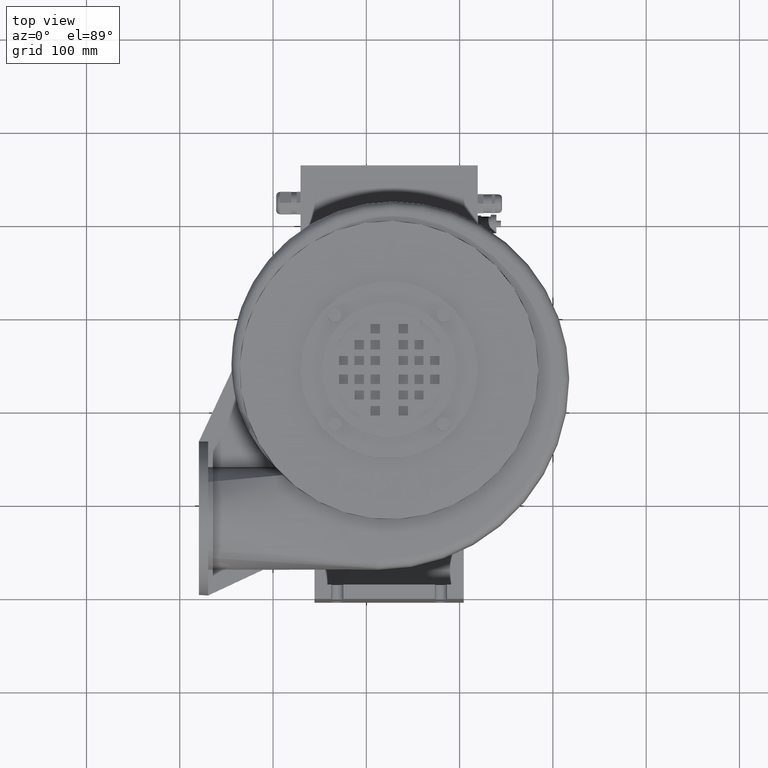
[diagram: clean part render]
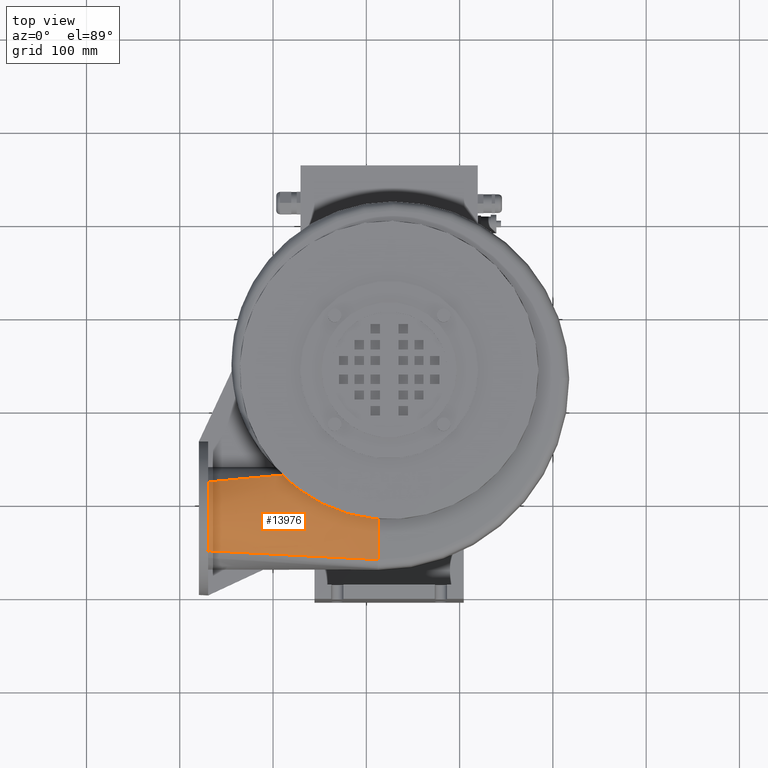
[diagram: same view with one face highlighted and labeled with its STEP entity id]
A machine part, top view. The second image highlights one B-rep face of the part: STEP entity #13976.
In plain terms, the highlighted face is a freeform B-spline surface patch.
Its self-contained STEP definition (entity closure, byte-faithful):
#222=CIRCLE('',#14764,55.);
#658=B_SPLINE_CURVE_WITH_KNOTS('',3,(#21186,#21187,#21188,#21189),
 .UNSPECIFIED.,.F.,.F.,(4,4),(-0.0798827187055614,0.),.UNSPECIFIED.);
#659=B_SPLINE_CURVE_WITH_KNOTS('',3,(#21191,#21192,#21193,#21194,#21195,
#21196,#21197,#21198,#21199,#21200),.UNSPECIFIED.,.F.,.F.,(4,2,2,2,4),(-9.61875310805802,
-8.28933189853991,-6.89288012715141,-3.29285751466183,-0.0798827187055614),
 .UNSPECIFIED.);
#663=B_SPLINE_CURVE_WITH_KNOTS('',3,(#21279,#21280,#21281,#21282),
 .UNSPECIFIED.,.F.,.F.,(4,4),(0.571466057516127,1.),.UNSPECIFIED.);
#664=B_SPLINE_CURVE_WITH_KNOTS('',3,(#21283,#21284,#21285,#21286),
 .UNSPECIFIED.,.F.,.F.,(4,4),(0.560505824097535,0.571466057516127),
 .UNSPECIFIED.);
#676=B_SPLINE_CURVE_WITH_KNOTS('',3,(#21549,#21550,#21551,#21552),
 .UNSPECIFIED.,.F.,.F.,(4,4),(0.,1.),.UNSPECIFIED.);
#935=B_SPLINE_SURFACE_WITH_KNOTS('',3,3,((#21521,#21522,#21523,#21524),
(#21525,#21526,#21527,#21528),(#21529,#21530,#21531,#21532),(#21533,#21534,
#21535,#21536),(#21537,#21538,#21539,#21540),(#21541,#21542,#21543,#21544),
(#21545,#21546,#21547,#21548)),.UNSPECIFIED.,.F.,.F.,.F.,(4,1,1,1,4),(4,
4),(0.,0.285714285714286,0.571428571428571,0.857142857142857,1.),(0.,1.),
 .UNSPECIFIED.);
#1352=FACE_OUTER_BOUND('',#2169,.T.);
#2169=EDGE_LOOP('',(#10405,#10406,#10407,#10408,#10409,#10410,#10411));
#3320=LINE('',#21471,#4653);
#4653=VECTOR('',#16629,43.450634598567);
#5999=VERTEX_POINT('',#21180);
#6000=VERTEX_POINT('',#21185);
#6001=VERTEX_POINT('',#21190);
#6006=VERTEX_POINT('',#21213);
#6017=VERTEX_POINT('',#21276);
#6018=VERTEX_POINT('',#21278);
#6024=VERTEX_POINT('',#21325);
#7591=EDGE_CURVE('',#6000,#5999,#658,.T.);
#7592=EDGE_CURVE('',#6001,#6000,#659,.T.);
#7613=EDGE_CURVE('',#6018,#6017,#663,.T.);
#7614=EDGE_CURVE('',#5999,#6018,#664,.T.);
#7622=EDGE_CURVE('',#6024,#6017,#222,.T.);
#7660=EDGE_CURVE('',#6006,#6001,#3320,.T.);
#7671=EDGE_CURVE('',#6006,#6024,#676,.T.);
#10405=ORIENTED_EDGE('',*,*,#7613,.T.);
#10406=ORIENTED_EDGE('',*,*,#7622,.F.);
#10407=ORIENTED_EDGE('',*,*,#7671,.F.);
#10408=ORIENTED_EDGE('',*,*,#7660,.T.);
#10409=ORIENTED_EDGE('',*,*,#7592,.T.);
#10410=ORIENTED_EDGE('',*,*,#7591,.T.);
#10411=ORIENTED_EDGE('',*,*,#7614,.T.);
#13976=ADVANCED_FACE('',(#1352),#935,.T.);
#14764=AXIS2_PLACEMENT_3D('',#21327,#16558,#16559);
#16558=DIRECTION('center_axis',(-1.,-1.12908644836052E-16,-1.22464679914736E-16));
#16559=DIRECTION('ref_axis',(1.22464679914736E-16,1.29953312800048E-15,
-1.));
#16629=DIRECTION('',(-1.12908644836053E-16,1.,1.29953312800048E-15));
#21180=CARTESIAN_POINT('',(-89.5762114512784,25.532596973897,116.190166449407));
#21185=CARTESIAN_POINT('',(-89.0502898324647,25.0009358069887,116.473039277911));
#21186=CARTESIAN_POINT('Ctrl Pts',(-89.0502898324648,25.0009358069884,116.473039277911));
#21187=CARTESIAN_POINT('Ctrl Pts',(-89.226471954207,25.1782101140208,116.379789473757));
#21188=CARTESIAN_POINT('Ctrl Pts',(-89.401778142429,25.3554338233971,116.285502710783));
#21189=CARTESIAN_POINT('Ctrl Pts',(-89.5762114512784,25.532596973897,116.190166449407));
#21190=CARTESIAN_POINT('',(12.4358485344729,-21.7614782278958,124.995715093864));
#21191=CARTESIAN_POINT('Ctrl Pts',(12.4358485344729,-21.7614782278958,124.995715093864));
#21192=CARTESIAN_POINT('Ctrl Pts',(6.52604354371432,-21.3169909702332,124.992725410349));
#21193=CARTESIAN_POINT('Ctrl Pts',(0.64554412561701,-20.5444964970212,124.993013629392));
#21194=CARTESIAN_POINT('Ctrl Pts',(-11.2961251082575,-18.295358070384,124.996197007151));
#21195=CARTESIAN_POINT('Ctrl Pts',(-17.3400552079627,-16.7873214028349,
125.000403280769));
#21196=CARTESIAN_POINT('Ctrl Pts',(-38.5914197745359,-10.1475844548052,
124.932362974116));
#21197=CARTESIAN_POINT('Ctrl Pts',(-51.9641730776432,-3.44831029043339,
124.762582464572));
#21198=CARTESIAN_POINT('Ctrl Pts',(-73.4653362195756,10.6563824955623,122.300920637507));
#21199=CARTESIAN_POINT('Ctrl Pts',(-81.9640423207598,17.8707593471054,120.223653620147));
#21200=CARTESIAN_POINT('Ctrl Pts',(-89.0502898324648,25.0009358069884,116.473039277911));
#21213=CARTESIAN_POINT('',(12.4358485344729,-65.2121128264628,124.995715093864));
#21276=CARTESIAN_POINT('',(-169.564151465527,18.2754981817866,109.285711261816));
#21278=CARTESIAN_POINT('',(-91.5709739334623,25.3516173362488,116.0179811404));
#21279=CARTESIAN_POINT('Ctrl Pts',(-91.5709739334623,25.3516173362488,116.0179811404));
#21280=CARTESIAN_POINT('Ctrl Pts',(-117.568699777484,22.9929109514281,113.773891180872));
#21281=CARTESIAN_POINT('Ctrl Pts',(-143.566425621506,20.6342045666073,111.529801221344));
#21282=CARTESIAN_POINT('Ctrl Pts',(-169.564151465527,18.2754981817866,109.285711261816));
#21283=CARTESIAN_POINT('Ctrl Pts',(-89.5762114512784,25.532596973897,116.190166449407));
#21284=CARTESIAN_POINT('Ctrl Pts',(-90.241132278673,25.4722704280142,116.132771346405));
#21285=CARTESIAN_POINT('Ctrl Pts',(-90.9060531060676,25.4119438821315,116.075376243403));
#21286=CARTESIAN_POINT('Ctrl Pts',(-91.5709739334623,25.3516173362488,116.0179811404));
#21325=CARTESIAN_POINT('',(-169.564151465527,-55.5549539805678,112.136948810448));
#21327=CARTESIAN_POINT('Origin',(-169.564151465527,-20.2121128264628,69.9957150938642));
#21471=CARTESIAN_POINT('',(12.4358485344729,25.7144085309687,124.995715093864));
#21521=CARTESIAN_POINT('Ctrl Pts',(12.4358485344729,-65.2121128264628,124.995715093864));
#21522=CARTESIAN_POINT('Ctrl Pts',(-48.2308181321937,-61.9930598778311,
120.709459666059));
#21523=CARTESIAN_POINT('Ctrl Pts',(-108.89748479886,-58.7740069291995,116.423204238253));
#21524=CARTESIAN_POINT('Ctrl Pts',(-169.564151465527,-55.5549539805678,
112.136948810448));
#21525=CARTESIAN_POINT('Ctrl Pts',(12.4358485344729,-55.6883033026533,124.995715093864));
#21526=CARTESIAN_POINT('Ctrl Pts',(-48.2308181321939,-53.6747049585239,
122.363317160444));
#21527=CARTESIAN_POINT('Ctrl Pts',(-108.89748479886,-51.6568790177717,119.727325241764));
#21528=CARTESIAN_POINT('Ctrl Pts',(-169.564151465527,-49.6432806736423,
117.094927308344));
#21529=CARTESIAN_POINT('Ctrl Pts',(12.4358485344729,-36.6406842550342,124.995715093864));
#21530=CARTESIAN_POINT('Ctrl Pts',(-48.2308181321935,-36.3288828597422,
124.825192288623));
#21531=CARTESIAN_POINT('Ctrl Pts',(-108.897484798861,-36.0168056056853,
124.653224653822));
#21532=CARTESIAN_POINT('Ctrl Pts',(-169.564151465527,-35.7050042103933,
124.482701848581));
#21533=CARTESIAN_POINT('Ctrl Pts',(12.4358485344729,-8.06925568360567,124.995715093864));
#21534=CARTESIAN_POINT('Ctrl Pts',(-48.230818132194,-9.4107775455774,125.351472168157));
#21535=CARTESIAN_POINT('Ctrl Pts',(-108.89748479886,-10.7500740121462,125.705091985668));
#21536=CARTESIAN_POINT('Ctrl Pts',(-169.564151465527,-12.0915958741179,
126.060849059961));
#21537=CARTESIAN_POINT('Ctrl Pts',(12.4358485344729,15.7402681259182,124.995715093864));
#21538=CARTESIAN_POINT('Ctrl Pts',(-48.2308181321935,12.6281290962456,123.070377657297));
#21539=CARTESIAN_POINT('Ctrl Pts',(-108.897484798861,9.51417178045648,121.144162817833));
#21540=CARTESIAN_POINT('Ctrl Pts',(-169.564151465527,6.40203275078397,119.218825381265));
#21541=CARTESIAN_POINT('Ctrl Pts',(12.4358485344729,30.0259824116324,124.995715093864));
#21542=CARTESIAN_POINT('Ctrl Pts',(-48.2308181321939,25.1897016498426,120.658036747361));
#21543=CARTESIAN_POINT('Ctrl Pts',(-108.89748479886,20.3559315099514,116.322956784912));
#21544=CARTESIAN_POINT('Ctrl Pts',(-169.564151465527,15.5196507481615,111.985278438409));
#21545=CARTESIAN_POINT('Ctrl Pts',(12.4358485344729,34.7878871735372,124.995715093864));
#21546=CARTESIAN_POINT('Ctrl Pts',(-48.2308181321937,29.2837575096203,119.759047149848));
#21547=CARTESIAN_POINT('Ctrl Pts',(-108.89748479886,23.7796278457035,114.522379205832));
#21548=CARTESIAN_POINT('Ctrl Pts',(-169.564151465527,18.2754981817866,109.285711261816));
#21549=CARTESIAN_POINT('Ctrl Pts',(12.4358485344729,-65.2121128264628,124.995715093864));
#21550=CARTESIAN_POINT('Ctrl Pts',(-48.2308181321937,-61.9930598778311,
120.709459666059));
#21551=CARTESIAN_POINT('Ctrl Pts',(-108.89748479886,-58.7740069291995,116.423204238253));
#21552=CARTESIAN_POINT('Ctrl Pts',(-169.564151465527,-55.5549539805678,
112.136948810448));